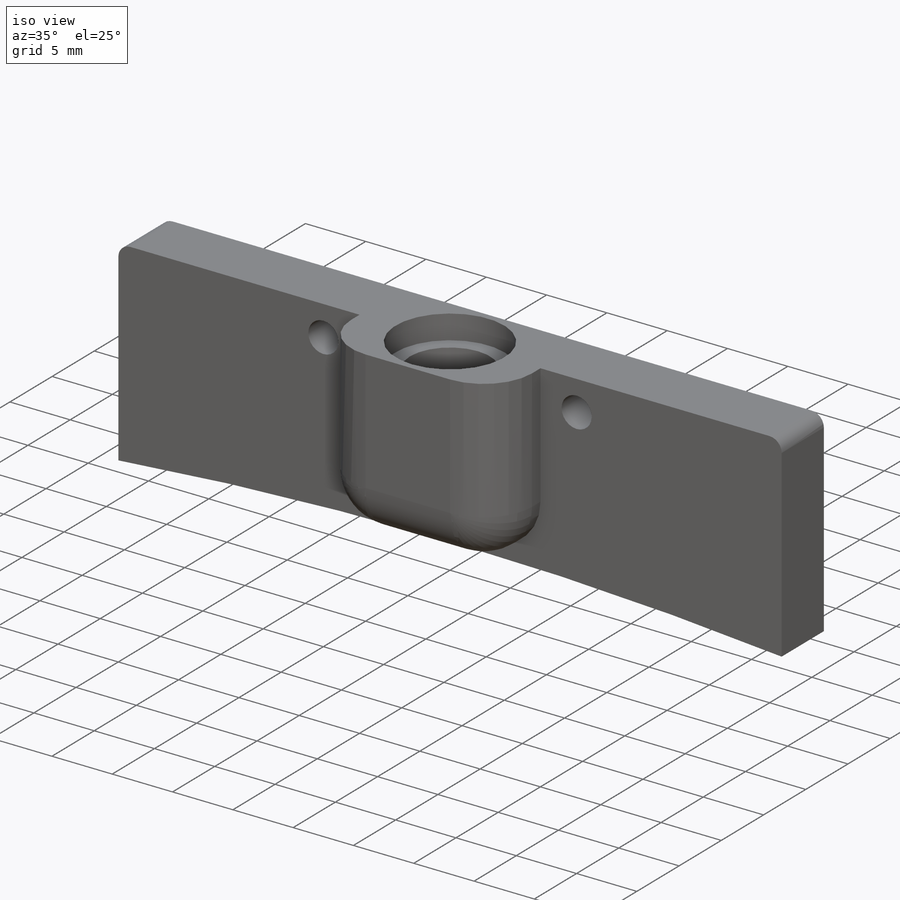
[diagram: iso view]
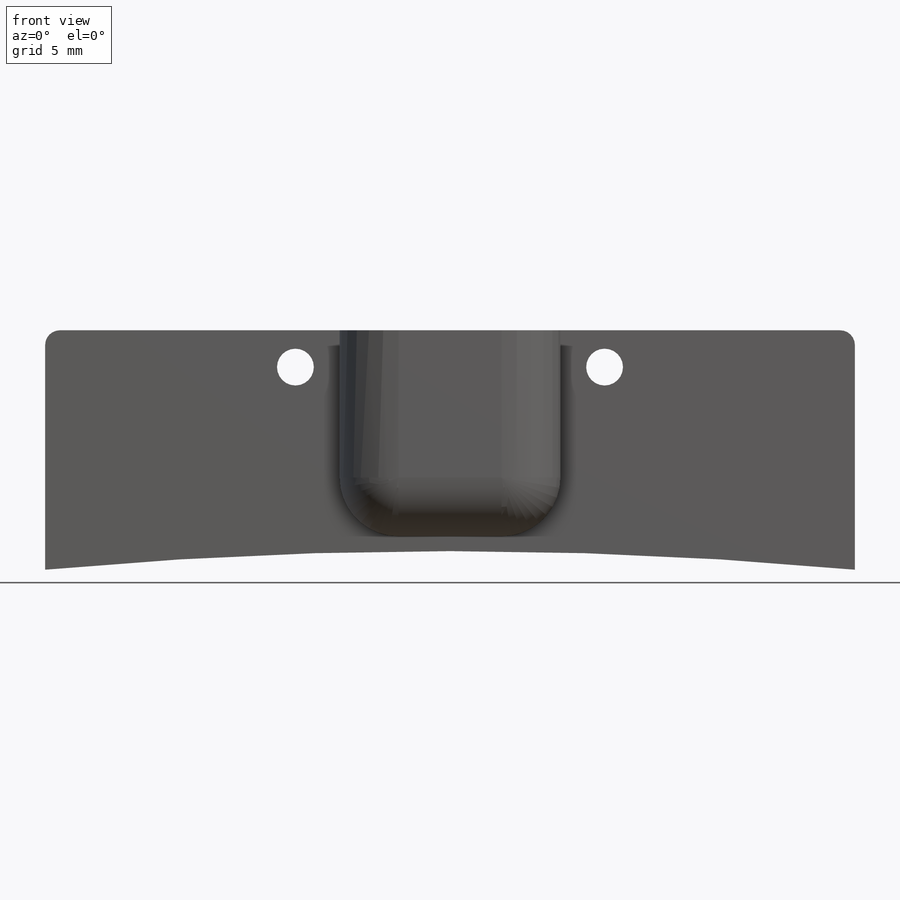
[diagram: front view]
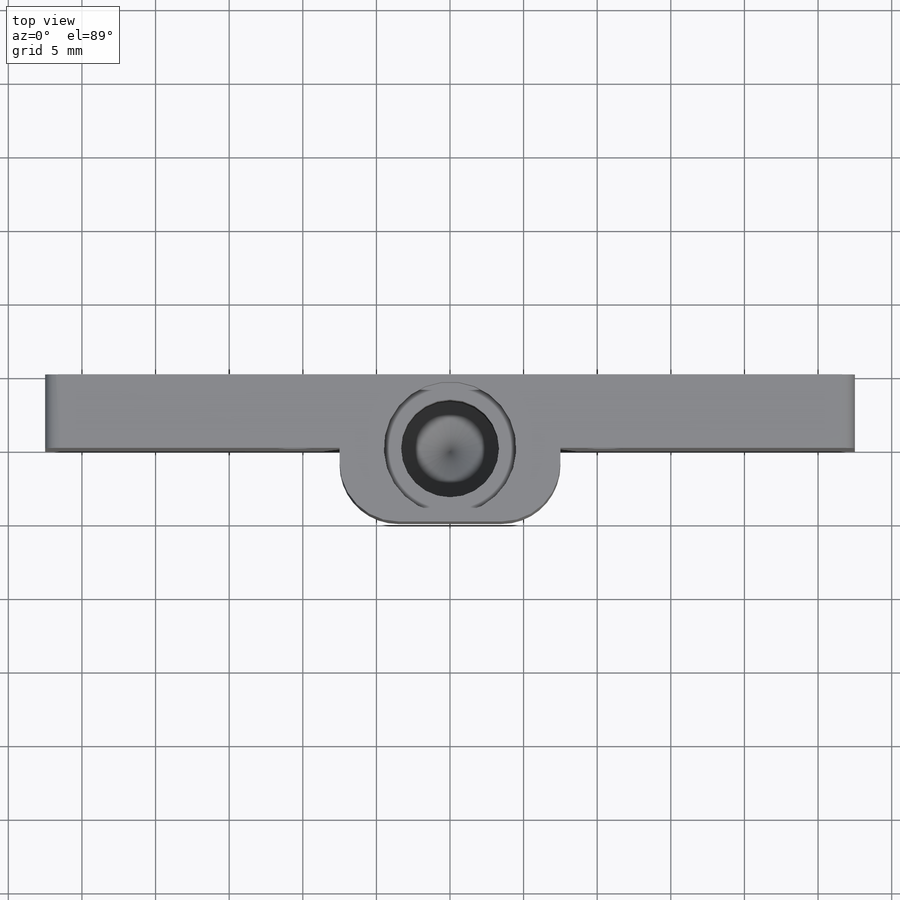
[diagram: top view]
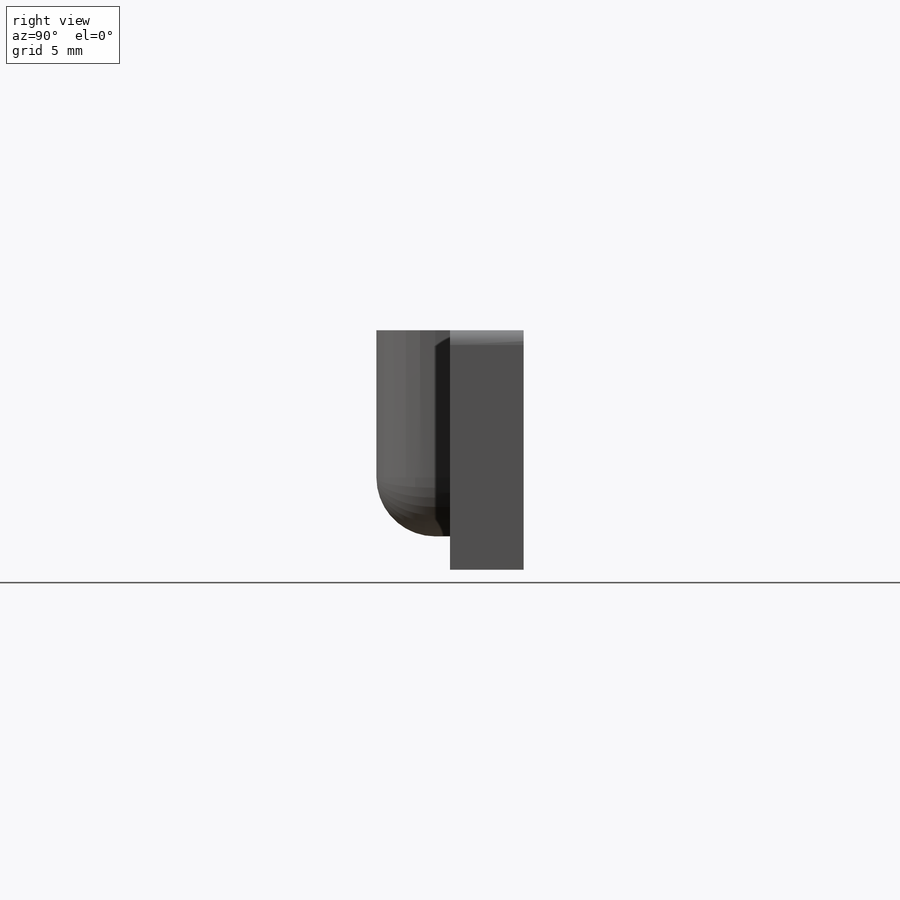
[diagram: right view]
SOLIDWORKS PART (.sldprt)
format: sldprt  version: not decoded by parser v0  size: 242,176 bytes
history: native  units: mm
features: sketch x6, extrude x2, hole x2, fillet x2, material x1, plane x1 (+13 scaffold rows collapsed)
feature tree (27):
  scaffold x13  (default folders/planes/origin — collapsed)
  material  "Material <not specified>"
  plane  "Plane1"
  sketch  "Sketch1"
  extrude  "Boss-Extrude1"  Depth=5mm
  sketch  "Sketch4"
  extrude  "Boss-Extrude2"  Depth=5mm
  hole  "CBORE for M6 Hex Head Bolt1"  Diameter=6.647mm Depth=10mm
  sketch  "Sketch6"
  sketch  "Sketch5"  dims[hole-wizard template sketch: 28 standard entries collapsed; hole parameters kept: c8.Hole Dia.=6.647mm c8.Hole Depth=10.0mm c8.C'Bore Dia.=9.0mm c8.C'Bore Depth=2.0mm c8.D5=~14.816244mm c8.Drill Angle=118.0deg]
  fillet  "Fillet1"  Radius=1mm
  fillet  "Fillet2"  Radius=4mm
  hole  "Tap Drill for M3x0.5 Tap1"  Diameter=2.5mm Depth=5mm
  sketch  "3DSketch1"  dims[D1=3.0mm D2=3.0mm D3=2.5mm]
  sketch  "Sketch7"  dims[hole-wizard template sketch: 60 standard entries collapsed; hole parameters kept: c18.Thru Hole Depth=5.0mm]
decode coverage: 9 of 12 modeling features carry decoded parameters
note: ~ marks probable driven/reference dimensions
note: suppression state not decoded; provenance and decode notes live in map.json
